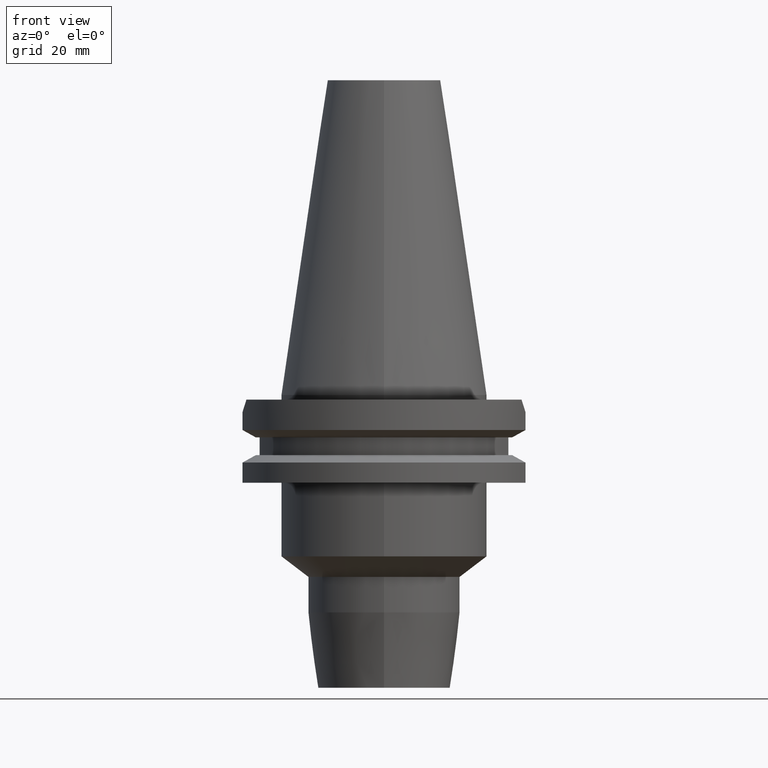
[diagram: clean part render]
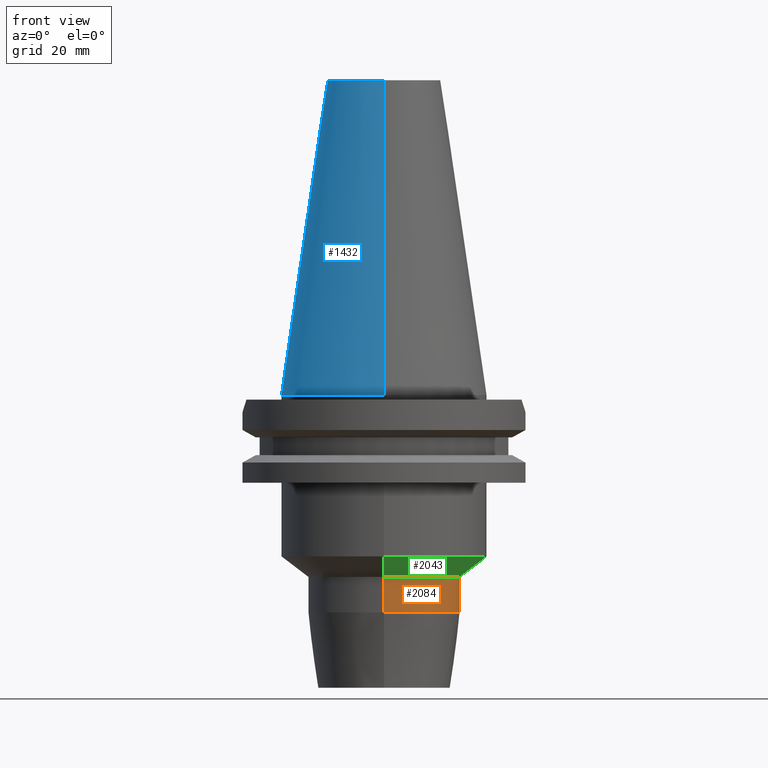
[diagram: same view with three faces highlighted in distinct colors, each labeled with its STEP entity id]
A machine part, front view with three faces highlighted in distinct colors.
Their STEP definitions:

[orange] entity #2084 — the highlighted cylindrical surface (partial cylindrical patch) has radius 16.5 mm, axis along (0, 0, 1).
#837=CARTESIAN_POINT('',(0.E0,0.E0,-3.946000126689E1));
#838=DIRECTION('',(0.E0,0.E0,-1.E0));
#839=DIRECTION('',(0.E0,1.E0,0.E0));
#840=AXIS2_PLACEMENT_3D('',#837,#838,#839);
#876=DIRECTION('',(0.E0,1.055406339390E-13,-1.E0));
#877=VECTOR('',#876,7.674946497238E0);
#878=CARTESIAN_POINT('',(0.E0,-1.65E1,-3.946000126689E1));
#879=LINE('',#878,#877);
#883=DIRECTION('',(0.E0,-1.055406339390E-13,-1.E0));
#884=VECTOR('',#883,7.674946497238E0);
#885=CARTESIAN_POINT('',(0.E0,1.65E1,-3.946000126689E1));
#886=LINE('',#885,#884);
#897=CARTESIAN_POINT('',(0.E0,0.E0,-4.713494776413E1));
#898=DIRECTION('',(0.E0,0.E0,1.E0));
#899=DIRECTION('',(0.E0,-1.E0,0.E0));
#900=AXIS2_PLACEMENT_3D('',#897,#898,#899);
#1276=CARTESIAN_POINT('',(0.E0,1.65E1,-3.946000126689E1));
#1277=VERTEX_POINT('',#1276);
#1278=CARTESIAN_POINT('',(0.E0,-1.65E1,-3.946000126689E1));
#1279=VERTEX_POINT('',#1278);
#1280=CARTESIAN_POINT('',(0.E0,1.65E1,-4.713494776413E1));
#1281=VERTEX_POINT('',#1280);
#1282=CARTESIAN_POINT('',(0.E0,-1.65E1,-4.713494776413E1));
#1283=VERTEX_POINT('',#1282);
#2072=CARTESIAN_POINT('',(0.E0,0.E0,-7.00875E1));
#2073=DIRECTION('',(0.E0,0.E0,1.E0));
#2074=DIRECTION('',(0.E0,1.E0,0.E0));
#2075=AXIS2_PLACEMENT_3D('',#2072,#2073,#2074);
#2076=CYLINDRICAL_SURFACE('',#2075,1.65E1);
#2077=ORIENTED_EDGE('',*,*,#2062,.T.);
#2079=ORIENTED_EDGE('',*,*,#2078,.F.);
#2080=ORIENTED_EDGE('',*,*,#2065,.F.);
#2081=ORIENTED_EDGE('',*,*,#2036,.F.);
#2082=EDGE_LOOP('',(#2077,#2079,#2080,#2081));
#2083=FACE_OUTER_BOUND('',#2082,.F.);
#841=CIRCLE('',#840,1.65E1);
#901=CIRCLE('',#900,1.65E1);
#2036=EDGE_CURVE('',#1277,#1279,#841,.T.);
#2062=EDGE_CURVE('',#1277,#1281,#886,.T.);
#2065=EDGE_CURVE('',#1279,#1283,#879,.T.);
#2078=EDGE_CURVE('',#1283,#1281,#901,.T.);
#2084=ADVANCED_FACE('',(#2083),#2076,.T.);

[blue] entity #1432 — the highlighted conical surface has half-angle 8.297 deg.
#17=DIRECTION('',(0.E0,-1.443069799457E-1,-9.895329683942E-1));
#18=VECTOR('',#17,6.897193138573E1);
#19=CARTESIAN_POINT('',(0.E0,-1.227186888070E1,6.825E1));
#20=LINE('',#19,#18);
#25=CARTESIAN_POINT('',(0.E0,0.E0,-3.694822225953E-13));
#26=DIRECTION('',(0.E0,0.E0,-1.E0));
#27=DIRECTION('',(0.E0,-1.E0,0.E0));
#28=AXIS2_PLACEMENT_3D('',#25,#26,#27);
#33=DIRECTION('',(0.E0,1.443069799457E-1,-9.895329683942E-1));
#34=VECTOR('',#33,6.897193138573E1);
#35=CARTESIAN_POINT('',(0.E0,1.227186888070E1,6.825E1));
#36=LINE('',#35,#34);
#1180=CARTESIAN_POINT('',(0.E0,0.E0,6.825E1));
#1181=DIRECTION('',(0.E0,0.E0,-1.E0));
#1182=DIRECTION('',(0.E0,-1.E0,0.E0));
#1183=AXIS2_PLACEMENT_3D('',#1180,#1181,#1182);
#1212=CARTESIAN_POINT('',(0.E0,1.227186888070E1,6.825E1));
#1213=CARTESIAN_POINT('',(0.E0,2.2225E1,-2.984279490192E-13));
#1214=VERTEX_POINT('',#1212);
#1215=VERTEX_POINT('',#1213);
#1216=CARTESIAN_POINT('',(0.E0,-1.227186888070E1,6.825E1));
#1217=VERTEX_POINT('',#1216);
#1218=CARTESIAN_POINT('',(0.E0,-2.2225E1,-2.984279490192E-13));
#1219=VERTEX_POINT('',#1218);
#1417=CARTESIAN_POINT('',(0.E0,0.E0,3.4125E1));
#1418=DIRECTION('',(0.E0,0.E0,-1.E0));
#1419=DIRECTION('',(0.E0,-1.E0,0.E0));
#1420=AXIS2_PLACEMENT_3D('',#1417,#1418,#1419);
#1421=CONICAL_SURFACE('',#1420,1.724843444035E1,8.29715E0);
#1423=ORIENTED_EDGE('',*,*,#1422,.F.);
#1425=ORIENTED_EDGE('',*,*,#1424,.F.);
#1427=ORIENTED_EDGE('',*,*,#1426,.T.);
#1429=ORIENTED_EDGE('',*,*,#1428,.T.);
#1430=EDGE_LOOP('',(#1423,#1425,#1427,#1429));
#1431=FACE_OUTER_BOUND('',#1430,.F.);
#29=CIRCLE('',#28,2.2225E1);
#1184=CIRCLE('',#1183,1.227186888070E1);
#1422=EDGE_CURVE('',#1214,#1215,#36,.T.);
#1424=EDGE_CURVE('',#1217,#1214,#1184,.T.);
#1426=EDGE_CURVE('',#1217,#1219,#20,.T.);
#1428=EDGE_CURVE('',#1219,#1215,#29,.T.);
#1432=ADVANCED_FACE('',(#1431),#1421,.T.);

[green] entity #2043 — the highlighted conical surface has half-angle 52.08 deg.
#830=DIRECTION('',(0.E0,-7.888696107795E-1,-6.145606049761E-1));
#831=VECTOR('',#830,7.257219598487E0);
#832=CARTESIAN_POINT('',(0.E0,2.2225E1,-3.5E1));
#833=LINE('',#832,#831);
#837=CARTESIAN_POINT('',(0.E0,0.E0,-3.946000126689E1));
#838=DIRECTION('',(0.E0,0.E0,-1.E0));
#839=DIRECTION('',(0.E0,1.E0,0.E0));
#840=AXIS2_PLACEMENT_3D('',#837,#838,#839);
#845=CARTESIAN_POINT('',(0.E0,0.E0,-3.5E1));
#846=DIRECTION('',(0.E0,0.E0,1.E0));
#847=DIRECTION('',(0.E0,-1.E0,0.E0));
#848=AXIS2_PLACEMENT_3D('',#845,#846,#847);
#861=DIRECTION('',(0.E0,7.888696107795E-1,-6.145606049761E-1));
#862=VECTOR('',#861,7.257219598487E0);
#863=CARTESIAN_POINT('',(0.E0,-2.2225E1,-3.5E1));
#864=LINE('',#863,#862);
#1272=CARTESIAN_POINT('',(0.E0,2.2225E1,-3.5E1));
#1273=VERTEX_POINT('',#1272);
#1274=CARTESIAN_POINT('',(0.E0,-2.2225E1,-3.5E1));
#1275=VERTEX_POINT('',#1274);
#1276=CARTESIAN_POINT('',(0.E0,1.65E1,-3.946000126689E1));
#1277=VERTEX_POINT('',#1276);
#1278=CARTESIAN_POINT('',(0.E0,-1.65E1,-3.946000126689E1));
#1279=VERTEX_POINT('',#1278);
#2029=CARTESIAN_POINT('',(0.E0,0.E0,-3.723000063345E1));
#2030=DIRECTION('',(0.E0,0.E0,1.E0));
#2031=DIRECTION('',(0.E0,1.E0,0.E0));
#2032=AXIS2_PLACEMENT_3D('',#2029,#2030,#2031);
#2033=CONICAL_SURFACE('',#2032,1.93625E1,5.208E1);
#2035=ORIENTED_EDGE('',*,*,#2034,.T.);
#2037=ORIENTED_EDGE('',*,*,#2036,.T.);
#2039=ORIENTED_EDGE('',*,*,#2038,.F.);
#2040=ORIENTED_EDGE('',*,*,#2022,.T.);
#2041=EDGE_LOOP('',(#2035,#2037,#2039,#2040));
#2042=FACE_OUTER_BOUND('',#2041,.F.);
#841=CIRCLE('',#840,1.65E1);
#849=CIRCLE('',#848,2.2225E1);
#2022=EDGE_CURVE('',#1275,#1273,#849,.T.);
#2034=EDGE_CURVE('',#1273,#1277,#833,.T.);
#2036=EDGE_CURVE('',#1277,#1279,#841,.T.);
#2038=EDGE_CURVE('',#1275,#1279,#864,.T.);
#2043=ADVANCED_FACE('',(#2042),#2033,.T.);